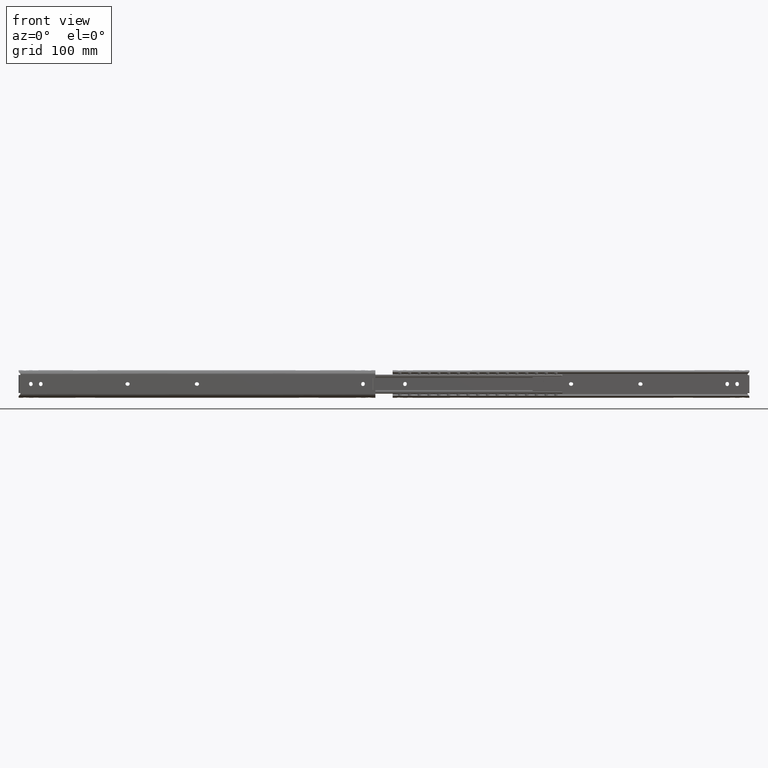
[diagram: clean part render]
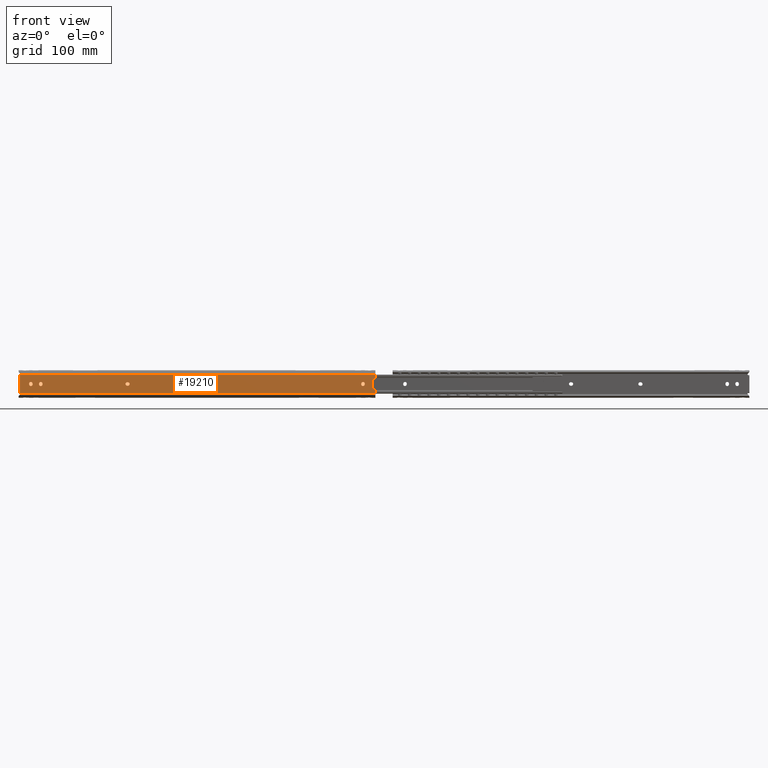
[diagram: same view with one face highlighted and labeled with its STEP entity id]
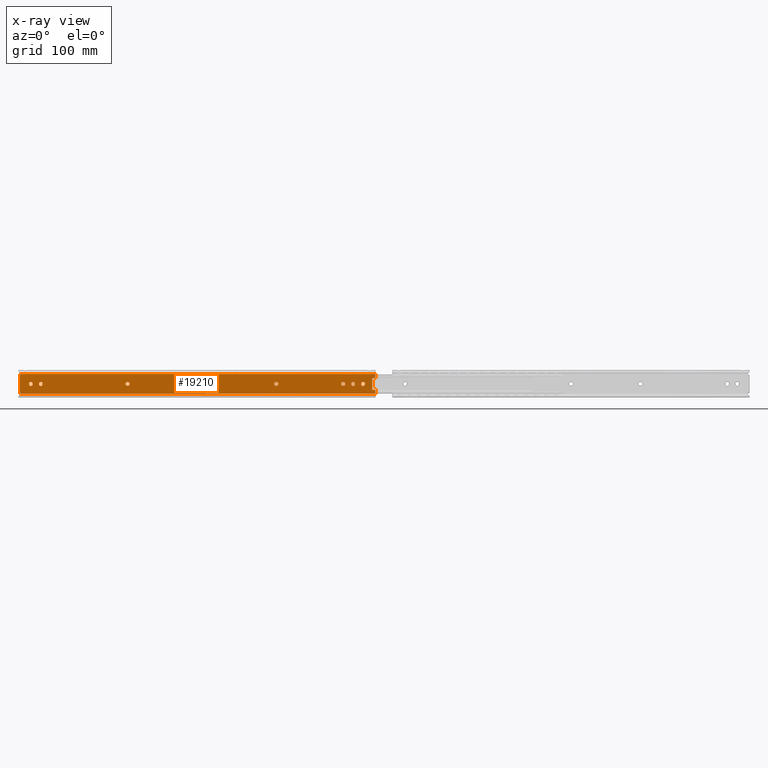
[diagram: x-ray of the same camera — body ghosted, the highlighted face saturated]
A machine part, front view. The second image highlights one B-rep face of the part: STEP entity #19210.
The next image is the same camera in x-ray: the body ghosted, the highlighted face saturated — about 0% of this face is hidden behind the body in this view.
In plain terms, the highlighted face is a freeform B-spline surface patch.
Its self-contained STEP definition (entity closure, byte-faithful):
#15758=CARTESIAN_POINT('',(-492.649999999999980,-19.100000000001948,0.400000000000007));
#15759=VERTEX_POINT('',#15758);
#15765=CARTESIAN_POINT('',(-497.149999999999980,-19.100000000001948,0.400000000000006));
#15766=VERTEX_POINT('',#15765);
#15767=CARTESIAN_POINT('',(-497.149999999999980,-19.100000000001948,0.400000000000006));
#15768=CARTESIAN_POINT('',(-497.150000000000030,-19.100000000001945,2.650000000000006));
#15769=CARTESIAN_POINT('',(-494.899999999999980,-19.100000000001948,2.650000000000006));
#15770=CARTESIAN_POINT('',(-492.650000000000150,-19.100000000001945,2.650000000000006));
#15771=CARTESIAN_POINT('',(-492.649999999999980,-19.100000000001948,0.400000000000006));
#15779=(BOUNDED_CURVE()B_SPLINE_CURVE(2,(#15767,#15768,#15769,#15770,#15771),.UNSPECIFIED.,.F.,.U.)B_SPLINE_CURVE_WITH_KNOTS((3,2,3),(0.0,0.500000000000000,1.0),.UNSPECIFIED.)CURVE()GEOMETRIC_REPRESENTATION_ITEM()RATIONAL_B_SPLINE_CURVE((1.0,0.707106781186547,1.0,0.707106781186547,1.0))REPRESENTATION_ITEM(''));
#15780=EDGE_CURVE('',#15766,#15759,#15779,.T.);
#15803=CARTESIAN_POINT('',(-497.149999999999980,-19.100000000001948,-0.400000000000091));
#15804=VERTEX_POINT('',#15803);
#15805=CARTESIAN_POINT('',(-497.149999999999980,-19.100000000001948,-0.400000000000091));
#15806=CARTESIAN_POINT('',(-497.149999999999980,-19.100000000001948,0.400000000000006));
#15807=QUASI_UNIFORM_CURVE('',1,(#15805,#15806),.UNSPECIFIED.,.F.,.U.);
#15808=EDGE_CURVE('',#15804,#15766,#15807,.T.);
#15854=CARTESIAN_POINT('',(-492.649999999999980,-19.100000000001948,-0.400000000000091));
#15855=VERTEX_POINT('',#15854);
#15856=CARTESIAN_POINT('',(-492.649999999999980,-19.100000000001948,-0.400000000000091));
#15857=CARTESIAN_POINT('',(-492.650000000000150,-19.100000000001945,-2.650000000000091));
#15858=CARTESIAN_POINT('',(-494.899999999999980,-19.100000000001948,-2.650000000000090));
#15859=CARTESIAN_POINT('',(-497.150000000000030,-19.100000000001945,-2.650000000000091));
#15860=CARTESIAN_POINT('',(-497.149999999999980,-19.100000000001948,-0.400000000000091));
#15868=(BOUNDED_CURVE()B_SPLINE_CURVE(2,(#15856,#15857,#15858,#15859,#15860),.UNSPECIFIED.,.F.,.U.)B_SPLINE_CURVE_WITH_KNOTS((3,2,3),(0.0,0.500000000000000,1.0),.UNSPECIFIED.)CURVE()GEOMETRIC_REPRESENTATION_ITEM()RATIONAL_B_SPLINE_CURVE((1.0,0.707106781186547,1.0,0.707106781186547,1.0))REPRESENTATION_ITEM(''));
#15869=EDGE_CURVE('',#15855,#15804,#15868,.T.);
#15890=CARTESIAN_POINT('',(-492.649999999999980,-19.100000000001948,0.400000000000007));
#15891=CARTESIAN_POINT('',(-492.649999999999980,-19.100000000001948,-0.400000000000091));
#15892=QUASI_UNIFORM_CURVE('',1,(#15890,#15891),.UNSPECIFIED.,.F.,.U.);
#15893=EDGE_CURVE('',#15759,#15855,#15892,.T.);
#15913=CARTESIAN_POINT('',(-505.350000000000020,-19.100000000001948,-0.400000000000091));
#15914=VERTEX_POINT('',#15913);
#15920=CARTESIAN_POINT('',(-505.350000000000020,-19.100000000001948,0.400000000000006));
#15921=VERTEX_POINT('',#15920);
#15922=CARTESIAN_POINT('',(-505.350000000000020,-19.100000000001948,-0.400000000000091));
#15923=CARTESIAN_POINT('',(-505.350000000000020,-19.100000000001948,0.400000000000006));
#15924=QUASI_UNIFORM_CURVE('',1,(#15922,#15923),.UNSPECIFIED.,.F.,.U.);
#15925=EDGE_CURVE('',#15914,#15921,#15924,.T.);
#15971=CARTESIAN_POINT('',(-509.850000000000020,-19.100000000001948,0.400000000000006));
#15972=VERTEX_POINT('',#15971);
#15973=CARTESIAN_POINT('',(-509.850000000000020,-19.100000000001948,0.400000000000006));
#15974=CARTESIAN_POINT('',(-509.850000000000020,-19.100000000001945,2.650000000000006));
#15975=CARTESIAN_POINT('',(-507.600000000000020,-19.100000000001948,2.650000000000006));
#15976=CARTESIAN_POINT('',(-505.350000000000020,-19.100000000001945,2.650000000000006));
#15977=CARTESIAN_POINT('',(-505.350000000000080,-19.100000000001948,0.400000000000006));
#15985=(BOUNDED_CURVE()B_SPLINE_CURVE(2,(#15973,#15974,#15975,#15976,#15977),.UNSPECIFIED.,.F.,.U.)B_SPLINE_CURVE_WITH_KNOTS((3,2,3),(0.0,0.500000000000000,1.0),.UNSPECIFIED.)CURVE()GEOMETRIC_REPRESENTATION_ITEM()RATIONAL_B_SPLINE_CURVE((1.0,0.707106781186547,1.0,0.707106781186547,1.0))REPRESENTATION_ITEM(''));
#15986=EDGE_CURVE('',#15972,#15921,#15985,.T.);
#16009=CARTESIAN_POINT('',(-509.850000000000020,-19.100000000001948,-0.400000000000091));
#16010=VERTEX_POINT('',#16009);
#16011=CARTESIAN_POINT('',(-509.850000000000020,-19.100000000001948,0.400000000000006));
#16012=CARTESIAN_POINT('',(-509.850000000000020,-19.100000000001948,-0.400000000000091));
#16013=QUASI_UNIFORM_CURVE('',1,(#16011,#16012),.UNSPECIFIED.,.F.,.U.);
#16014=EDGE_CURVE('',#15972,#16010,#16013,.T.);
#16058=CARTESIAN_POINT('',(-505.350000000000080,-19.100000000001948,-0.400000000000091));
#16059=CARTESIAN_POINT('',(-505.350000000000020,-19.100000000001945,-2.650000000000091));
#16060=CARTESIAN_POINT('',(-507.600000000000020,-19.100000000001948,-2.650000000000090));
#16061=CARTESIAN_POINT('',(-509.850000000000020,-19.100000000001945,-2.650000000000091));
#16062=CARTESIAN_POINT('',(-509.850000000000020,-19.100000000001948,-0.400000000000091));
#16070=(BOUNDED_CURVE()B_SPLINE_CURVE(2,(#16058,#16059,#16060,#16061,#16062),.UNSPECIFIED.,.F.,.U.)B_SPLINE_CURVE_WITH_KNOTS((3,2,3),(0.0,0.500000000000000,1.0),.UNSPECIFIED.)CURVE()GEOMETRIC_REPRESENTATION_ITEM()RATIONAL_B_SPLINE_CURVE((1.0,0.707106781186547,1.0,0.707106781186547,1.0))REPRESENTATION_ITEM(''));
#16071=EDGE_CURVE('',#15914,#16010,#16070,.T.);
#16114=CARTESIAN_POINT('',(-520.700000000000050,-19.100000000001948,2.250000000000000));
#16115=VERTEX_POINT('',#16114);
#16121=CARTESIAN_POINT('',(-520.700000000000050,-19.100000000001948,-2.250000000000000));
#16122=VERTEX_POINT('',#16121);
#16123=CARTESIAN_POINT('',(-520.700000000000050,-19.100000000001948,-2.250000000000000));
#16124=CARTESIAN_POINT('',(-522.950000000000050,-19.100000000001945,-2.250000000000000));
#16125=CARTESIAN_POINT('',(-522.950000000000050,-19.100000000001948,3.596230E-016));
#16126=CARTESIAN_POINT('',(-522.950000000000050,-19.100000000001945,2.250000000000000));
#16127=CARTESIAN_POINT('',(-520.700000000000050,-19.100000000001948,2.250000000000000));
#16135=(BOUNDED_CURVE()B_SPLINE_CURVE(2,(#16123,#16124,#16125,#16126,#16127),.UNSPECIFIED.,.F.,.U.)B_SPLINE_CURVE_WITH_KNOTS((3,2,3),(0.0,0.500000000000000,1.0),.UNSPECIFIED.)CURVE()GEOMETRIC_REPRESENTATION_ITEM()RATIONAL_B_SPLINE_CURVE((1.0,0.707106781186547,1.0,0.707106781186547,1.0))REPRESENTATION_ITEM(''));
#16136=EDGE_CURVE('',#16122,#16115,#16135,.T.);
#16158=CARTESIAN_POINT('',(-519.899999999999980,-19.100000000001948,2.250000000000000));
#16159=VERTEX_POINT('',#16158);
#16165=CARTESIAN_POINT('',(-519.899999999999980,-19.100000000001948,2.250000000000000));
#16166=CARTESIAN_POINT('',(-520.700000000000050,-19.100000000001948,2.250000000000000));
#16167=QUASI_UNIFORM_CURVE('',1,(#16165,#16166),.UNSPECIFIED.,.F.,.U.);
#16168=EDGE_CURVE('',#16159,#16115,#16167,.T.);
#16209=CARTESIAN_POINT('',(-519.899999999999980,-19.100000000001948,-2.250000000000000));
#16210=VERTEX_POINT('',#16209);
#16216=CARTESIAN_POINT('',(-519.899999999999980,-19.100000000001948,2.250000000000000));
#16217=CARTESIAN_POINT('',(-517.650000000000200,-19.100000000001945,2.250000000000000));
#16218=CARTESIAN_POINT('',(-517.650000000000090,-19.100000000001948,3.596230E-016));
#16219=CARTESIAN_POINT('',(-517.650000000000200,-19.100000000001945,-2.250000000000000));
#16220=CARTESIAN_POINT('',(-519.899999999999980,-19.100000000001948,-2.250000000000000));
#16228=(BOUNDED_CURVE()B_SPLINE_CURVE(2,(#16216,#16217,#16218,#16219,#16220),.UNSPECIFIED.,.F.,.U.)B_SPLINE_CURVE_WITH_KNOTS((3,2,3),(0.0,0.500000000000000,1.0),.UNSPECIFIED.)CURVE()GEOMETRIC_REPRESENTATION_ITEM()RATIONAL_B_SPLINE_CURVE((1.0,0.707106781186547,1.0,0.707106781186547,1.0))REPRESENTATION_ITEM(''));
#16229=EDGE_CURVE('',#16159,#16210,#16228,.T.);
#16246=CARTESIAN_POINT('',(-520.700000000000050,-19.100000000001948,-2.250000000000000));
#16247=CARTESIAN_POINT('',(-519.899999999999980,-19.100000000001948,-2.250000000000000));
#16248=QUASI_UNIFORM_CURVE('',1,(#16246,#16247),.UNSPECIFIED.,.F.,.U.);
#16249=EDGE_CURVE('',#16122,#16210,#16248,.T.);
#16292=CARTESIAN_POINT('',(-605.600000000000020,-19.100000000001948,-2.250000000000000));
#16293=VERTEX_POINT('',#16292);
#16299=CARTESIAN_POINT('',(-605.600000000000020,-19.100000000001948,2.250000000000000));
#16300=VERTEX_POINT('',#16299);
#16301=CARTESIAN_POINT('',(-605.600000000000020,-19.100000000001948,2.250000000000000));
#16302=CARTESIAN_POINT('',(-603.350000000000020,-19.100000000001945,2.250000000000000));
#16303=CARTESIAN_POINT('',(-603.350000000000020,-19.100000000001948,3.596230E-016));
#16304=CARTESIAN_POINT('',(-603.350000000000020,-19.100000000001945,-2.250000000000000));
#16305=CARTESIAN_POINT('',(-605.600000000000020,-19.100000000001948,-2.250000000000000));
#16313=(BOUNDED_CURVE()B_SPLINE_CURVE(2,(#16301,#16302,#16303,#16304,#16305),.UNSPECIFIED.,.F.,.U.)B_SPLINE_CURVE_WITH_KNOTS((3,2,3),(0.0,0.500000000000000,1.0),.UNSPECIFIED.)CURVE()GEOMETRIC_REPRESENTATION_ITEM()RATIONAL_B_SPLINE_CURVE((1.0,0.707106781186547,1.0,0.707106781186547,1.0))REPRESENTATION_ITEM(''));
#16314=EDGE_CURVE('',#16300,#16293,#16313,.T.);
#16337=CARTESIAN_POINT('',(-606.400000000000090,-19.100000000001948,2.250000000000000));
#16338=VERTEX_POINT('',#16337);
#16339=CARTESIAN_POINT('',(-606.400000000000090,-19.100000000001948,2.250000000000000));
#16340=CARTESIAN_POINT('',(-605.600000000000020,-19.100000000001948,2.250000000000000));
#16341=QUASI_UNIFORM_CURVE('',1,(#16339,#16340),.UNSPECIFIED.,.F.,.U.);
#16342=EDGE_CURVE('',#16338,#16300,#16341,.T.);
#16388=CARTESIAN_POINT('',(-606.400000000000090,-19.100000000001948,-2.250000000000000));
#16389=VERTEX_POINT('',#16388);
#16390=CARTESIAN_POINT('',(-606.400000000000090,-19.100000000001948,-2.250000000000000));
#16391=CARTESIAN_POINT('',(-608.649999999999980,-19.100000000001945,-2.250000000000000));
#16392=CARTESIAN_POINT('',(-608.649999999999980,-19.100000000001948,3.596230E-016));
#16393=CARTESIAN_POINT('',(-608.649999999999980,-19.100000000001945,2.250000000000000));
#16394=CARTESIAN_POINT('',(-606.400000000000090,-19.100000000001948,2.250000000000000));
#16402=(BOUNDED_CURVE()B_SPLINE_CURVE(2,(#16390,#16391,#16392,#16393,#16394),.UNSPECIFIED.,.F.,.U.)B_SPLINE_CURVE_WITH_KNOTS((3,2,3),(0.0,0.500000000000000,1.0),.UNSPECIFIED.)CURVE()GEOMETRIC_REPRESENTATION_ITEM()RATIONAL_B_SPLINE_CURVE((1.0,0.707106781186547,1.0,0.707106781186547,1.0))REPRESENTATION_ITEM(''));
#16403=EDGE_CURVE('',#16389,#16338,#16402,.T.);
#16424=CARTESIAN_POINT('',(-605.600000000000020,-19.100000000001948,-2.250000000000000));
#16425=CARTESIAN_POINT('',(-606.400000000000090,-19.100000000001948,-2.250000000000000));
#16426=QUASI_UNIFORM_CURVE('',1,(#16424,#16425),.UNSPECIFIED.,.F.,.U.);
#16427=EDGE_CURVE('',#16293,#16389,#16426,.T.);
#16447=CARTESIAN_POINT('',(-796.100000000000020,-19.100000000001948,2.250000000000000));
#16448=VERTEX_POINT('',#16447);
#16454=CARTESIAN_POINT('',(-796.900000000000090,-19.100000000001948,2.250000000000000));
#16455=VERTEX_POINT('',#16454);
#16456=CARTESIAN_POINT('',(-796.100000000000020,-19.100000000001948,2.250000000000000));
#16457=CARTESIAN_POINT('',(-796.900000000000090,-19.100000000001948,2.250000000000000));
#16458=QUASI_UNIFORM_CURVE('',1,(#16456,#16457),.UNSPECIFIED.,.F.,.U.);
#16459=EDGE_CURVE('',#16448,#16455,#16458,.T.);
#16505=CARTESIAN_POINT('',(-796.900000000000090,-19.100000000001948,-2.250000000000000));
#16506=VERTEX_POINT('',#16505);
#16507=CARTESIAN_POINT('',(-796.900000000000090,-19.100000000001948,-2.250000000000000));
#16508=CARTESIAN_POINT('',(-799.149999999999980,-19.100000000001945,-2.250000000000000));
#16509=CARTESIAN_POINT('',(-799.149999999999980,-19.100000000001948,3.596230E-016));
#16510=CARTESIAN_POINT('',(-799.149999999999980,-19.100000000001945,2.250000000000000));
#16511=CARTESIAN_POINT('',(-796.900000000000090,-19.100000000001948,2.250000000000000));
#16519=(BOUNDED_CURVE()B_SPLINE_CURVE(2,(#16507,#16508,#16509,#16510,#16511),.UNSPECIFIED.,.F.,.U.)B_SPLINE_CURVE_WITH_KNOTS((3,2,3),(0.0,0.500000000000000,1.0),.UNSPECIFIED.)CURVE()GEOMETRIC_REPRESENTATION_ITEM()RATIONAL_B_SPLINE_CURVE((1.0,0.707106781186547,1.0,0.707106781186547,1.0))REPRESENTATION_ITEM(''));
#16520=EDGE_CURVE('',#16506,#16455,#16519,.T.);
#16543=CARTESIAN_POINT('',(-796.100000000000020,-19.100000000001948,-2.250000000000200));
#16544=VERTEX_POINT('',#16543);
#16545=CARTESIAN_POINT('',(-796.900000000000090,-19.100000000001948,-2.250000000000000));
#16546=CARTESIAN_POINT('',(-796.100000000000020,-19.100000000001948,-2.250000000000200));
#16547=QUASI_UNIFORM_CURVE('',1,(#16545,#16546),.UNSPECIFIED.,.F.,.U.);
#16548=EDGE_CURVE('',#16506,#16544,#16547,.T.);
#16592=CARTESIAN_POINT('',(-796.100000000000020,-19.100000000001948,2.250000000000000));
#16593=CARTESIAN_POINT('',(-793.849999999999800,-19.100000000001945,2.250000000000000));
#16594=CARTESIAN_POINT('',(-793.850000000000020,-19.100000000001948,3.596230E-016));
#16595=CARTESIAN_POINT('',(-793.849999999999800,-19.100000000001945,-2.250000000000000));
#16596=CARTESIAN_POINT('',(-796.100000000000020,-19.100000000001948,-2.250000000000000));
#16604=(BOUNDED_CURVE()B_SPLINE_CURVE(2,(#16592,#16593,#16594,#16595,#16596),.UNSPECIFIED.,.F.,.U.)B_SPLINE_CURVE_WITH_KNOTS((3,2,3),(0.0,0.500000000000000,1.0),.UNSPECIFIED.)CURVE()GEOMETRIC_REPRESENTATION_ITEM()RATIONAL_B_SPLINE_CURVE((1.0,0.707106781186547,1.0,0.707106781186547,1.0))REPRESENTATION_ITEM(''));
#16605=EDGE_CURVE('',#16448,#16544,#16604,.T.);
#16648=CARTESIAN_POINT('',(-707.200000000000050,-19.100000000001948,-2.250000000000000));
#16649=VERTEX_POINT('',#16648);
#16655=CARTESIAN_POINT('',(-707.200000000000050,-19.100000000001948,2.250000000000000));
#16656=VERTEX_POINT('',#16655);
#16657=CARTESIAN_POINT('',(-707.200000000000050,-19.100000000001948,2.250000000000000));
#16658=CARTESIAN_POINT('',(-704.950000000000050,-19.100000000001945,2.250000000000000));
#16659=CARTESIAN_POINT('',(-704.950000000000050,-19.100000000001948,3.596230E-016));
#16660=CARTESIAN_POINT('',(-704.950000000000050,-19.100000000001945,-2.250000000000000));
#16661=CARTESIAN_POINT('',(-707.200000000000050,-19.100000000001948,-2.250000000000000));
#16669=(BOUNDED_CURVE()B_SPLINE_CURVE(2,(#16657,#16658,#16659,#16660,#16661),.UNSPECIFIED.,.F.,.U.)B_SPLINE_CURVE_WITH_KNOTS((3,2,3),(0.0,0.500000000000000,1.0),.UNSPECIFIED.)CURVE()GEOMETRIC_REPRESENTATION_ITEM()RATIONAL_B_SPLINE_CURVE((1.0,0.707106781186547,1.0,0.707106781186547,1.0))REPRESENTATION_ITEM(''));
#16670=EDGE_CURVE('',#16656,#16649,#16669,.T.);
#16693=CARTESIAN_POINT('',(-708.0,-19.100000000001948,2.250000000000000));
#16694=VERTEX_POINT('',#16693);
#16695=CARTESIAN_POINT('',(-708.0,-19.100000000001948,2.250000000000000));
#16696=CARTESIAN_POINT('',(-707.200000000000050,-19.100000000001948,2.250000000000000));
#16697=QUASI_UNIFORM_CURVE('',1,(#16695,#16696),.UNSPECIFIED.,.F.,.U.);
#16698=EDGE_CURVE('',#16694,#16656,#16697,.T.);
#16744=CARTESIAN_POINT('',(-708.0,-19.100000000001948,-2.250000000000000));
#16745=VERTEX_POINT('',#16744);
#16746=CARTESIAN_POINT('',(-708.0,-19.100000000001948,-2.250000000000000));
#16747=CARTESIAN_POINT('',(-710.250000000000000,-19.100000000001945,-2.250000000000000));
#16748=CARTESIAN_POINT('',(-710.249999999999890,-19.100000000001948,3.596230E-016));
#16749=CARTESIAN_POINT('',(-710.250000000000000,-19.100000000001945,2.250000000000000));
#16750=CARTESIAN_POINT('',(-708.0,-19.100000000001948,2.250000000000000));
#16758=(BOUNDED_CURVE()B_SPLINE_CURVE(2,(#16746,#16747,#16748,#16749,#16750),.UNSPECIFIED.,.F.,.U.)B_SPLINE_CURVE_WITH_KNOTS((3,2,3),(0.0,0.500000000000000,1.0),.UNSPECIFIED.)CURVE()GEOMETRIC_REPRESENTATION_ITEM()RATIONAL_B_SPLINE_CURVE((1.0,0.707106781186547,1.0,0.707106781186547,1.0))REPRESENTATION_ITEM(''));
#16759=EDGE_CURVE('',#16745,#16694,#16758,.T.);
#16780=CARTESIAN_POINT('',(-707.200000000000050,-19.100000000001948,-2.250000000000000));
#16781=CARTESIAN_POINT('',(-708.0,-19.100000000001948,-2.250000000000000));
#16782=QUASI_UNIFORM_CURVE('',1,(#16780,#16781),.UNSPECIFIED.,.F.,.U.);
#16783=EDGE_CURVE('',#16649,#16745,#16782,.T.);
#16826=CARTESIAN_POINT('',(-918.050000000000070,-19.100000000001948,0.400000000000006));
#16827=VERTEX_POINT('',#16826);
#16833=CARTESIAN_POINT('',(-922.549999999999950,-19.100000000001948,0.400000000000006));
#16834=VERTEX_POINT('',#16833);
#16835=CARTESIAN_POINT('',(-922.549999999999950,-19.100000000001948,0.400000000000006));
#16836=CARTESIAN_POINT('',(-922.549999999999950,-19.100000000001945,2.650000000000006));
#16837=CARTESIAN_POINT('',(-920.299999999999950,-19.100000000001948,2.650000000000006));
#16838=CARTESIAN_POINT('',(-918.049999999999950,-19.100000000001945,2.650000000000006));
#16839=CARTESIAN_POINT('',(-918.050000000000070,-19.100000000001948,0.400000000000006));
#16847=(BOUNDED_CURVE()B_SPLINE_CURVE(2,(#16835,#16836,#16837,#16838,#16839),.UNSPECIFIED.,.F.,.U.)B_SPLINE_CURVE_WITH_KNOTS((3,2,3),(0.0,0.500000000000000,1.0),.UNSPECIFIED.)CURVE()GEOMETRIC_REPRESENTATION_ITEM()RATIONAL_B_SPLINE_CURVE((1.0,0.707106781186547,1.0,0.707106781186547,1.0))REPRESENTATION_ITEM(''));
#16848=EDGE_CURVE('',#16834,#16827,#16847,.T.);
#16870=CARTESIAN_POINT('',(-918.050000000000070,-19.100000000001948,-0.400000000000091));
#16871=VERTEX_POINT('',#16870);
#16877=CARTESIAN_POINT('',(-918.050000000000070,-19.100000000001948,-0.400000000000091));
#16878=CARTESIAN_POINT('',(-918.050000000000070,-19.100000000001948,0.400000000000006));
#16879=QUASI_UNIFORM_CURVE('',1,(#16877,#16878),.UNSPECIFIED.,.F.,.U.);
#16880=EDGE_CURVE('',#16871,#16827,#16879,.T.);
#16921=CARTESIAN_POINT('',(-922.549999999999950,-19.100000000001948,-0.400000000000091));
#16922=VERTEX_POINT('',#16921);
#16928=CARTESIAN_POINT('',(-918.050000000000070,-19.100000000001948,-0.400000000000091));
#16929=CARTESIAN_POINT('',(-918.049999999999950,-19.100000000001945,-2.650000000000091));
#16930=CARTESIAN_POINT('',(-920.299999999999950,-19.100000000001948,-2.650000000000090));
#16931=CARTESIAN_POINT('',(-922.549999999999950,-19.100000000001945,-2.650000000000091));
#16932=CARTESIAN_POINT('',(-922.549999999999950,-19.100000000001948,-0.400000000000091));
#16940=(BOUNDED_CURVE()B_SPLINE_CURVE(2,(#16928,#16929,#16930,#16931,#16932),.UNSPECIFIED.,.F.,.U.)B_SPLINE_CURVE_WITH_KNOTS((3,2,3),(0.0,0.500000000000000,1.0),.UNSPECIFIED.)CURVE()GEOMETRIC_REPRESENTATION_ITEM()RATIONAL_B_SPLINE_CURVE((1.0,0.707106781186547,1.0,0.707106781186547,1.0))REPRESENTATION_ITEM(''));
#16941=EDGE_CURVE('',#16871,#16922,#16940,.T.);
#16958=CARTESIAN_POINT('',(-922.549999999999950,-19.100000000001948,0.400000000000006));
#16959=CARTESIAN_POINT('',(-922.549999999999950,-19.100000000001948,-0.400000000000091));
#16960=QUASI_UNIFORM_CURVE('',1,(#16958,#16959),.UNSPECIFIED.,.F.,.U.);
#16961=EDGE_CURVE('',#16834,#16922,#16960,.T.);
#16981=CARTESIAN_POINT('',(-909.850000000000020,-19.100000000001948,0.400000000000007));
#16982=VERTEX_POINT('',#16981);
#16988=CARTESIAN_POINT('',(-909.850000000000020,-19.100000000001948,-0.400000000000091));
#16989=VERTEX_POINT('',#16988);
#16990=CARTESIAN_POINT('',(-909.850000000000020,-19.100000000001948,0.400000000000007));
#16991=CARTESIAN_POINT('',(-909.850000000000020,-19.100000000001948,-0.400000000000091));
#16992=QUASI_UNIFORM_CURVE('',1,(#16990,#16991),.UNSPECIFIED.,.F.,.U.);
#16993=EDGE_CURVE('',#16982,#16989,#16992,.T.);
#17039=CARTESIAN_POINT('',(-905.350000000000020,-19.100000000001948,-0.400000000000091));
#17040=VERTEX_POINT('',#17039);
#17041=CARTESIAN_POINT('',(-905.350000000000020,-19.100000000001948,-0.400000000000091));
#17042=CARTESIAN_POINT('',(-905.350000000000140,-19.100000000001945,-2.650000000000091));
#17043=CARTESIAN_POINT('',(-907.599999999999910,-19.100000000001948,-2.650000000000090));
#17044=CARTESIAN_POINT('',(-909.850000000000020,-19.100000000001945,-2.650000000000091));
#17045=CARTESIAN_POINT('',(-909.849999999999910,-19.100000000001948,-0.400000000000091));
#17053=(BOUNDED_CURVE()B_SPLINE_CURVE(2,(#17041,#17042,#17043,#17044,#17045),.UNSPECIFIED.,.F.,.U.)B_SPLINE_CURVE_WITH_KNOTS((3,2,3),(0.0,0.500000000000000,1.0),.UNSPECIFIED.)CURVE()GEOMETRIC_REPRESENTATION_ITEM()RATIONAL_B_SPLINE_CURVE((1.0,0.707106781186547,1.0,0.707106781186547,1.0))REPRESENTATION_ITEM(''));
#17054=EDGE_CURVE('',#17040,#16989,#17053,.T.);
#17077=CARTESIAN_POINT('',(-905.350000000000020,-19.100000000001948,0.400000000000006));
#17078=VERTEX_POINT('',#17077);
#17079=CARTESIAN_POINT('',(-905.350000000000020,-19.100000000001948,-0.400000000000091));
#17080=CARTESIAN_POINT('',(-905.350000000000020,-19.100000000001948,0.400000000000006));
#17081=QUASI_UNIFORM_CURVE('',1,(#17079,#17080),.UNSPECIFIED.,.F.,.U.);
#17082=EDGE_CURVE('',#17040,#17078,#17081,.T.);
#17126=CARTESIAN_POINT('',(-909.849999999999910,-19.100000000001948,0.400000000000006));
#17127=CARTESIAN_POINT('',(-909.850000000000020,-19.100000000001945,2.650000000000006));
#17128=CARTESIAN_POINT('',(-907.599999999999910,-19.100000000001948,2.650000000000006));
#17129=CARTESIAN_POINT('',(-905.350000000000140,-19.100000000001945,2.650000000000006));
#17130=CARTESIAN_POINT('',(-905.350000000000020,-19.100000000001948,0.400000000000006));
#17138=(BOUNDED_CURVE()B_SPLINE_CURVE(2,(#17126,#17127,#17128,#17129,#17130),.UNSPECIFIED.,.F.,.U.)B_SPLINE_CURVE_WITH_KNOTS((3,2,3),(0.0,0.500000000000000,1.0),.UNSPECIFIED.)CURVE()GEOMETRIC_REPRESENTATION_ITEM()RATIONAL_B_SPLINE_CURVE((1.0,0.707106781186547,1.0,0.707106781186547,1.0))REPRESENTATION_ITEM(''));
#17139=EDGE_CURVE('',#16982,#17078,#17138,.T.);
#17531=CARTESIAN_POINT('',(-934.399999999999980,-19.100000000001948,-11.500000000000000));
#17532=VERTEX_POINT('',#17531);
#17548=CARTESIAN_POINT('',(-934.399999999999980,-19.100000000001948,11.500000000000000));
#17549=VERTEX_POINT('',#17548);
#17550=CARTESIAN_POINT('',(-934.399999999999980,-19.100000000001948,11.500000000000000));
#17551=CARTESIAN_POINT('',(-934.399999999999980,-19.100000000001948,-11.500000000000000));
#17552=QUASI_UNIFORM_CURVE('',1,(#17550,#17551),.UNSPECIFIED.,.F.,.U.);
#17553=EDGE_CURVE('',#17549,#17532,#17552,.T.);
#17592=CARTESIAN_POINT('',(-483.100000000000020,-19.100000000001948,7.500000000000000));
#17593=VERTEX_POINT('',#17592);
#17609=CARTESIAN_POINT('',(-483.100000000000020,-19.100000000001948,-7.500000000000200));
#17610=VERTEX_POINT('',#17609);
#17611=CARTESIAN_POINT('',(-483.100000000000020,-19.100000000001948,-7.500000000000200));
#17612=CARTESIAN_POINT('',(-483.100000000000020,-19.100000000001948,7.500000000000000));
#17613=QUASI_UNIFORM_CURVE('',1,(#17611,#17612),.UNSPECIFIED.,.F.,.U.);
#17614=EDGE_CURVE('',#17610,#17593,#17613,.T.);
#17970=CARTESIAN_POINT('',(-933.639865253736960,-19.100000000001948,12.578915999999900));
#17971=VERTEX_POINT('',#17970);
#17972=CARTESIAN_POINT('',(-933.639865253739570,-19.100000000001948,12.578915999999010));
#17973=CARTESIAN_POINT('',(-933.498933981360890,-19.100000000001948,12.184613891432541));
#17974=CARTESIAN_POINT('',(-933.740101415457160,-19.100000000001948,11.842306945716270));
#17975=CARTESIAN_POINT('',(-933.981268849553540,-19.100000000001948,11.499999999999998));
#17976=CARTESIAN_POINT('',(-934.399999999999980,-19.100000000001948,11.500000000000000));
#17984=(BOUNDED_CURVE()B_SPLINE_CURVE(2,(#17972,#17973,#17974,#17975,#17976),.UNSPECIFIED.,.F.,.U.)B_SPLINE_CURVE_WITH_KNOTS((3,2,3),(0.0,0.500000000000000,1.0),.UNSPECIFIED.)CURVE()GEOMETRIC_REPRESENTATION_ITEM()RATIONAL_B_SPLINE_CURVE((1.0,0.887679040060947,1.0,0.887679040060947,1.0))REPRESENTATION_ITEM(''));
#17985=EDGE_CURVE('',#17971,#17549,#17984,.T.);
#18262=CARTESIAN_POINT('',(-933.639865253736960,-19.100000000001948,-12.578916000000000));
#18263=VERTEX_POINT('',#18262);
#18271=CARTESIAN_POINT('',(-934.399999999999980,-19.100000000001948,-11.500000000000000));
#18272=CARTESIAN_POINT('',(-933.981268849553540,-19.100000000001952,-11.500000000000005));
#18273=CARTESIAN_POINT('',(-933.740101415457160,-19.100000000001948,-11.842306945716309));
#18274=CARTESIAN_POINT('',(-933.498933981360890,-19.100000000001952,-12.184613891432630));
#18275=CARTESIAN_POINT('',(-933.639865253739570,-19.100000000001948,-12.578915999999101));
#18283=(BOUNDED_CURVE()B_SPLINE_CURVE(2,(#18271,#18272,#18273,#18274,#18275),.UNSPECIFIED.,.F.,.U.)B_SPLINE_CURVE_WITH_KNOTS((3,2,3),(0.0,0.500000000000000,1.0),.UNSPECIFIED.)CURVE()GEOMETRIC_REPRESENTATION_ITEM()RATIONAL_B_SPLINE_CURVE((1.0,0.887679040060933,1.0,0.887679040060933,1.0))REPRESENTATION_ITEM(''));
#18284=EDGE_CURVE('',#17532,#18263,#18283,.T.);
#18480=CARTESIAN_POINT('',(-479.0,-19.100000000001948,-7.500000000000200));
#18481=VERTEX_POINT('',#18480);
#18482=CARTESIAN_POINT('',(-483.100000000000020,-19.100000000001948,-7.500000000000200));
#18483=CARTESIAN_POINT('',(-479.0,-19.100000000001948,-7.500000000000200));
#18484=QUASI_UNIFORM_CURVE('',1,(#18482,#18483),.UNSPECIFIED.,.F.,.U.);
#18485=EDGE_CURVE('',#17610,#18481,#18484,.T.);
#18519=CARTESIAN_POINT('',(-479.0,-19.100000000001948,7.500000000000000));
#18520=VERTEX_POINT('',#18519);
#18526=CARTESIAN_POINT('',(-479.0,-19.100000000001948,7.500000000000000));
#18527=CARTESIAN_POINT('',(-483.100000000000020,-19.100000000001948,7.500000000000000));
#18528=QUASI_UNIFORM_CURVE('',1,(#18526,#18527),.UNSPECIFIED.,.F.,.U.);
#18529=EDGE_CURVE('',#18520,#17593,#18528,.T.);
#18589=CARTESIAN_POINT('',(-479.0,-19.100000000001948,12.578915999999900));
#18590=VERTEX_POINT('',#18589);
#18591=CARTESIAN_POINT('',(-479.0,-19.100000000001948,12.578915999999900));
#18592=CARTESIAN_POINT('',(-933.639865253736960,-19.100000000001948,12.578915999999900));
#18593=QUASI_UNIFORM_CURVE('',1,(#18591,#18592),.UNSPECIFIED.,.F.,.U.);
#18594=EDGE_CURVE('',#18590,#17971,#18593,.T.);
#18643=CARTESIAN_POINT('',(-479.0,-19.100000000001899,-12.578916000000000));
#18644=VERTEX_POINT('',#18643);
#18658=CARTESIAN_POINT('',(-479.0,-19.100000000001899,-12.578916000000000));
#18659=CARTESIAN_POINT('',(-933.639865253736960,-19.100000000001948,-12.578916000000000));
#18660=QUASI_UNIFORM_CURVE('',1,(#18658,#18659),.UNSPECIFIED.,.F.,.U.);
#18661=EDGE_CURVE('',#18644,#18263,#18660,.T.);
#18911=CARTESIAN_POINT('',(-479.0,-19.100000000001899,-12.578916000000000));
#18912=CARTESIAN_POINT('',(-479.0,-19.100000000001948,-7.500000000000200));
#18913=QUASI_UNIFORM_CURVE('',1,(#18911,#18912),.UNSPECIFIED.,.F.,.U.);
#18914=EDGE_CURVE('',#18644,#18481,#18913,.T.);
#18965=CARTESIAN_POINT('',(-479.0,-19.100000000001948,7.500000000000000));
#18966=CARTESIAN_POINT('',(-479.0,-19.100000000001948,12.578915999999900));
#18967=QUASI_UNIFORM_CURVE('',1,(#18965,#18966),.UNSPECIFIED.,.F.,.U.);
#18968=EDGE_CURVE('',#18520,#18590,#18967,.T.);
#19145=CARTESIAN_POINT('',(-456.252770882653520,-19.100000000001948,-13.835549333594059));
#19146=CARTESIAN_POINT('',(-456.252770882653520,-19.100000000001948,13.835548433879779));
#19147=CARTESIAN_POINT('',(-957.147241332126330,-19.100000000001948,-13.835549333594059));
#19148=CARTESIAN_POINT('',(-957.147241332126330,-19.100000000001948,13.835548433879779));
#19149=B_SPLINE_SURFACE_WITH_KNOTS('',1,1,((#19145,#19147),(#19146,#19148)),.UNSPECIFIED.,.F.,.F.,.U.,(2,2),(2,2),(0.0,27.671097767473839),(0.0,500.894470449472920),.UNSPECIFIED.);
#19150=ORIENTED_EDGE('',*,*,#18485,.F.);
#19151=ORIENTED_EDGE('',*,*,#17614,.T.);
#19152=ORIENTED_EDGE('',*,*,#18529,.F.);
#19153=ORIENTED_EDGE('',*,*,#18968,.T.);
#19154=ORIENTED_EDGE('',*,*,#18594,.T.);
#19155=ORIENTED_EDGE('',*,*,#17985,.T.);
#19156=ORIENTED_EDGE('',*,*,#17553,.T.);
#19157=ORIENTED_EDGE('',*,*,#18284,.T.);
#19158=ORIENTED_EDGE('',*,*,#18661,.F.);
#19159=ORIENTED_EDGE('',*,*,#18914,.T.);
#19160=EDGE_LOOP('',(#19150,#19151,#19152,#19153,#19154,#19155,#19156,#19157,#19158,#19159));
#19161=FACE_OUTER_BOUND('',#19160,.T.);
#19162=ORIENTED_EDGE('',*,*,#16071,.T.);
#19163=ORIENTED_EDGE('',*,*,#16014,.F.);
#19164=ORIENTED_EDGE('',*,*,#15986,.T.);
#19165=ORIENTED_EDGE('',*,*,#15925,.F.);
#19166=EDGE_LOOP('',(#19162,#19163,#19164,#19165));
#19167=FACE_BOUND('',#19166,.T.);
#19168=ORIENTED_EDGE('',*,*,#16941,.T.);
#19169=ORIENTED_EDGE('',*,*,#16961,.F.);
#19170=ORIENTED_EDGE('',*,*,#16848,.T.);
#19171=ORIENTED_EDGE('',*,*,#16880,.F.);
#19172=EDGE_LOOP('',(#19168,#19169,#19170,#19171));
#19173=FACE_BOUND('',#19172,.T.);
#19174=ORIENTED_EDGE('',*,*,#17139,.T.);
#19175=ORIENTED_EDGE('',*,*,#17082,.F.);
#19176=ORIENTED_EDGE('',*,*,#17054,.T.);
#19177=ORIENTED_EDGE('',*,*,#16993,.F.);
#19178=EDGE_LOOP('',(#19174,#19175,#19176,#19177));
#19179=FACE_BOUND('',#19178,.T.);
#19180=ORIENTED_EDGE('',*,*,#15893,.T.);
#19181=ORIENTED_EDGE('',*,*,#15869,.T.);
#19182=ORIENTED_EDGE('',*,*,#15808,.T.);
#19183=ORIENTED_EDGE('',*,*,#15780,.T.);
#19184=EDGE_LOOP('',(#19180,#19181,#19182,#19183));
#19185=FACE_BOUND('',#19184,.T.);
#19186=ORIENTED_EDGE('',*,*,#16783,.T.);
#19187=ORIENTED_EDGE('',*,*,#16759,.T.);
#19188=ORIENTED_EDGE('',*,*,#16698,.T.);
#19189=ORIENTED_EDGE('',*,*,#16670,.T.);
#19190=EDGE_LOOP('',(#19186,#19187,#19188,#19189));
#19191=FACE_BOUND('',#19190,.T.);
#19192=ORIENTED_EDGE('',*,*,#16605,.T.);
#19193=ORIENTED_EDGE('',*,*,#16548,.F.);
#19194=ORIENTED_EDGE('',*,*,#16520,.T.);
#19195=ORIENTED_EDGE('',*,*,#16459,.F.);
#19196=EDGE_LOOP('',(#19192,#19193,#19194,#19195));
#19197=FACE_BOUND('',#19196,.T.);
#19198=ORIENTED_EDGE('',*,*,#16427,.T.);
#19199=ORIENTED_EDGE('',*,*,#16403,.T.);
#19200=ORIENTED_EDGE('',*,*,#16342,.T.);
#19201=ORIENTED_EDGE('',*,*,#16314,.T.);
#19202=EDGE_LOOP('',(#19198,#19199,#19200,#19201));
#19203=FACE_BOUND('',#19202,.T.);
#19204=ORIENTED_EDGE('',*,*,#16229,.T.);
#19205=ORIENTED_EDGE('',*,*,#16249,.F.);
#19206=ORIENTED_EDGE('',*,*,#16136,.T.);
#19207=ORIENTED_EDGE('',*,*,#16168,.F.);
#19208=EDGE_LOOP('',(#19204,#19205,#19206,#19207));
#19209=FACE_BOUND('',#19208,.T.);
#19210=ADVANCED_FACE('',(#19161,#19167,#19173,#19179,#19185,#19191,#19197,#19203,#19209),#19149,.T.);